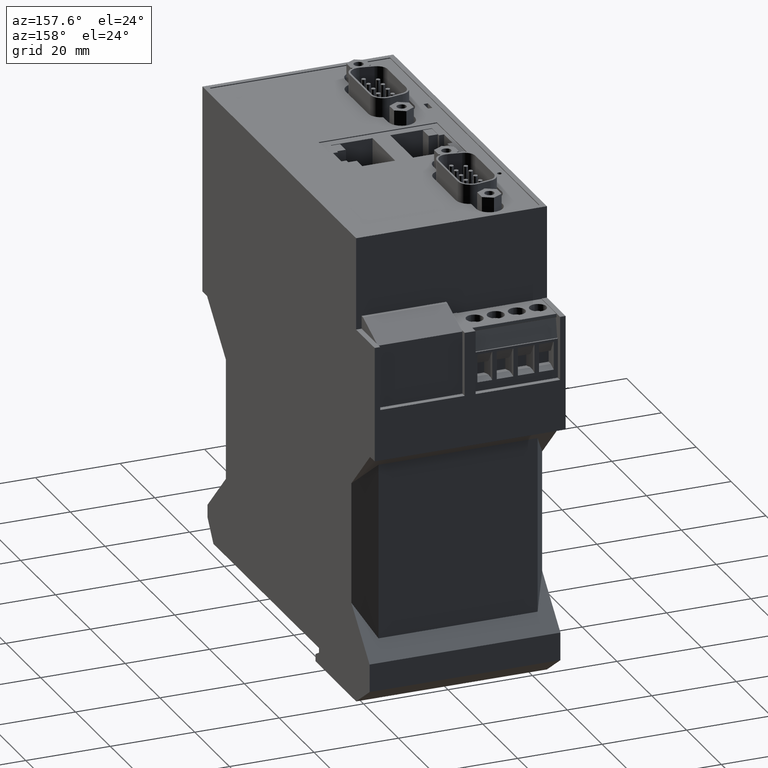
[diagram: clean part render]
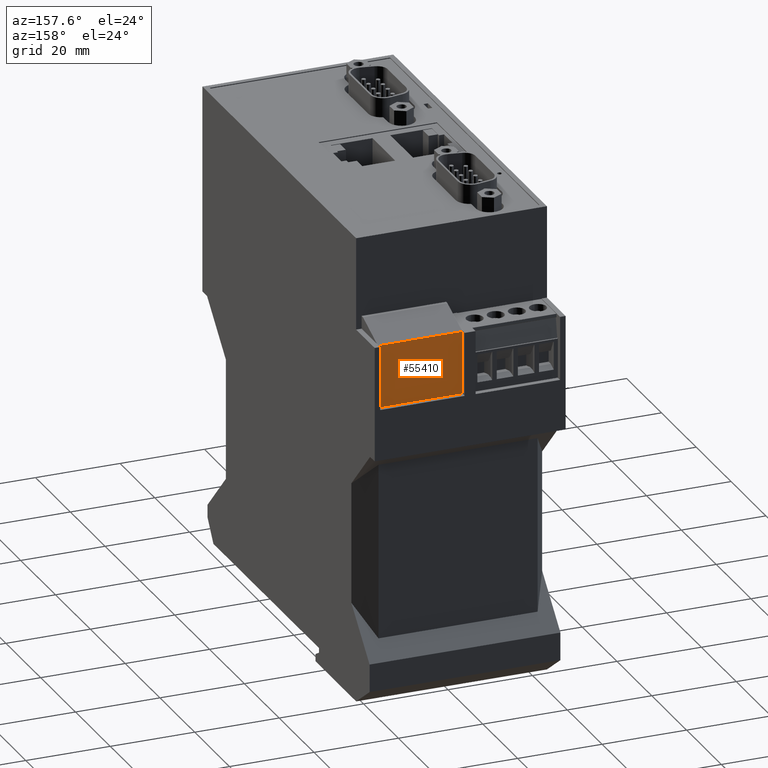
[diagram: same view with one face highlighted and labeled with its STEP entity id]
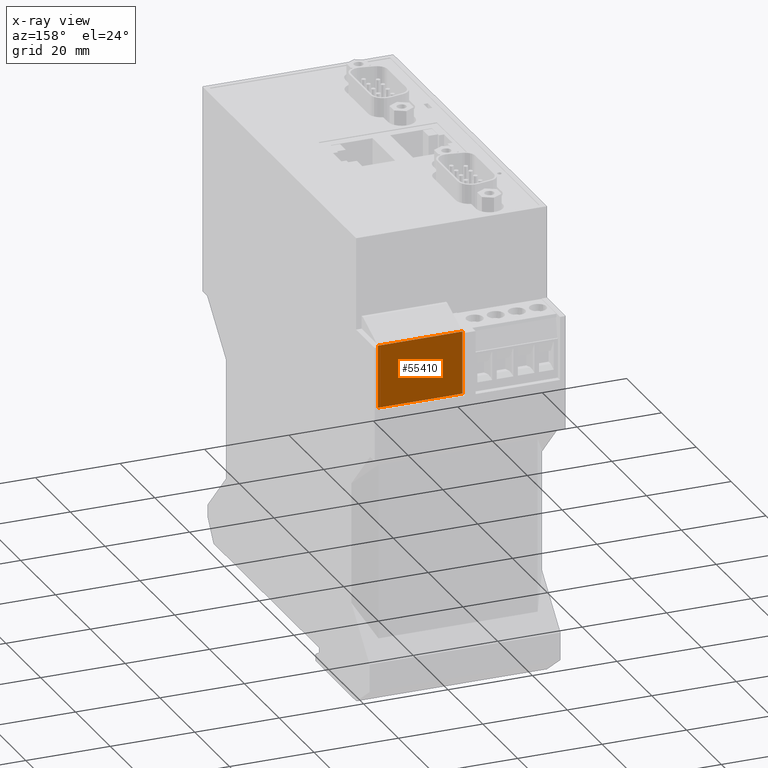
[diagram: x-ray of the same camera — body ghosted, the highlighted face saturated]
A machine part, auxiliary view. The second image highlights one B-rep face of the part: STEP entity #55410.
The next image is the same camera in x-ray: the body ghosted, the highlighted face saturated — about 0% of this face is hidden behind the body in this view.
In plain terms, the highlighted planar face has unit normal (0, 1, -0).
Its self-contained STEP definition (entity closure, byte-faithful):
#18290=CARTESIAN_POINT('',(30.6999999999906,84.8684508776834,
12.6000000001708));
#18300=VERTEX_POINT('',#18290);
#18530=CARTESIAN_POINT('',(30.7000000000093,70.0000000000079,
12.6000000001708));
#18540=VERTEX_POINT('',#18530);
#18570=CARTESIAN_POINT('',(30.7000000000086,24.,12.6000000001708));
#18580=DIRECTION('',(-1.54465812121769E-14,-1.,2.18623649095503E-24));
#18590=VECTOR('',#18580,1.);
#18600=LINE('',#18570,#18590);
#18610=EDGE_CURVE('',#18300,#18540,#18600,.T.);
#55110=CARTESIAN_POINT('',(30.7000000000095,79.1850000000074,
13.200000000168));
#55120=DIRECTION('',(1.,-1.54465812121769E-14,0.));
#55130=DIRECTION('',(-1.54465812121769E-14,-1.,0.));
#55140=AXIS2_PLACEMENT_3D('',#55110,#55120,#55130);
#55150=PLANE('',#55140);
#55160=CARTESIAN_POINT('',(30.7000000000093,70.0000000000079,0.));
#55170=DIRECTION('',(-4.1509644263412E-38,-2.67964483389782E-24,-1.));
#55180=VECTOR('',#55170,1.);
#55190=LINE('',#55160,#55180);
#55200=CARTESIAN_POINT('',(30.7000000000093,70.0000000000079,
32.6000000001709));
#55210=VERTEX_POINT('',#55200);
#55220=EDGE_CURVE('',#55210,#18540,#55190,.T.);
#55230=ORIENTED_EDGE('',*,*,#55220,.T.);
#55240=CARTESIAN_POINT('',(30.7000000000086,24.,32.6000000001709));
#55250=DIRECTION('',(-1.54465812121769E-14,-1.,2.18623649095503E-24));
#55260=VECTOR('',#55250,1.);
#55270=LINE('',#55240,#55260);
#55280=CARTESIAN_POINT('',(30.6999999999544,84.8684508776834,
32.6000000001629));
#55290=VERTEX_POINT('',#55280);
#55300=EDGE_CURVE('',#55290,#55210,#55270,.T.);
#55310=ORIENTED_EDGE('',*,*,#55300,.T.);
#55320=CARTESIAN_POINT('',(30.6999999999906,84.8684508776834,
12.6000000001708));
#55330=DIRECTION('',(-1.81016239686149E-12,2.21419669665128E-24,1.));
#55340=VECTOR('',#55330,1.);
#55350=LINE('',#55320,#55340);
#55360=EDGE_CURVE('',#18300,#55290,#55350,.T.);
#55370=ORIENTED_EDGE('',*,*,#55360,.T.);
#55380=ORIENTED_EDGE('',*,*,#18610,.F.);
#55390=EDGE_LOOP('',(#55380,#55370,#55310,#55230));
#55400=FACE_OUTER_BOUND('',#55390,.T.);
#55410=ADVANCED_FACE('',(#55400),#55150,.T.);